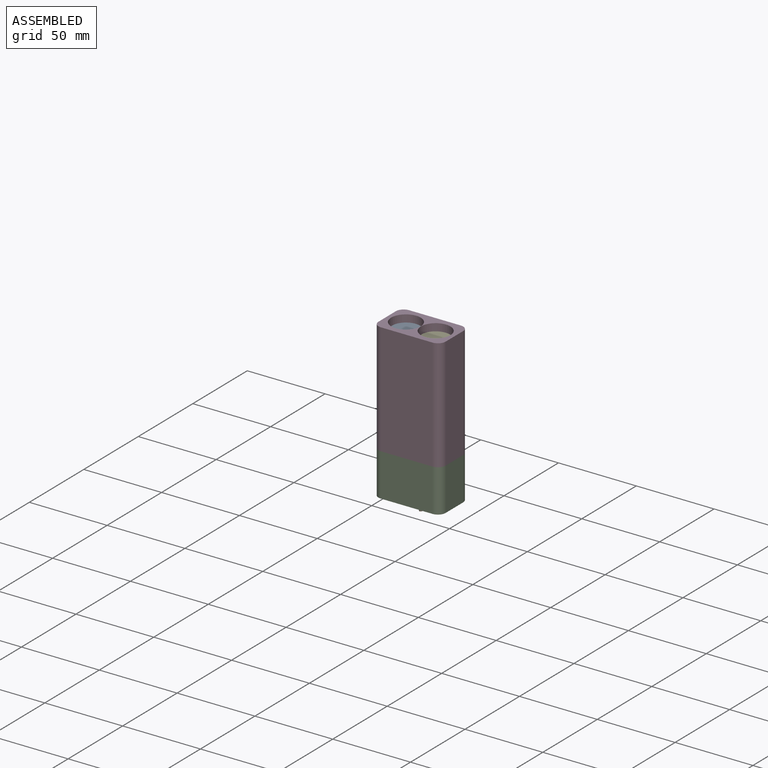
[diagram: assembled view]
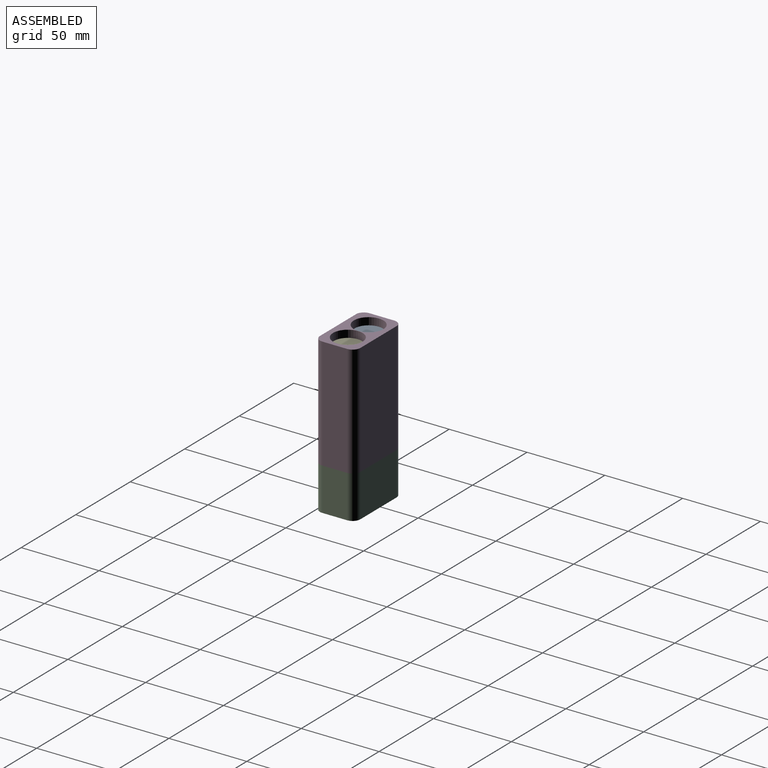
[diagram: assembled view, second angle]
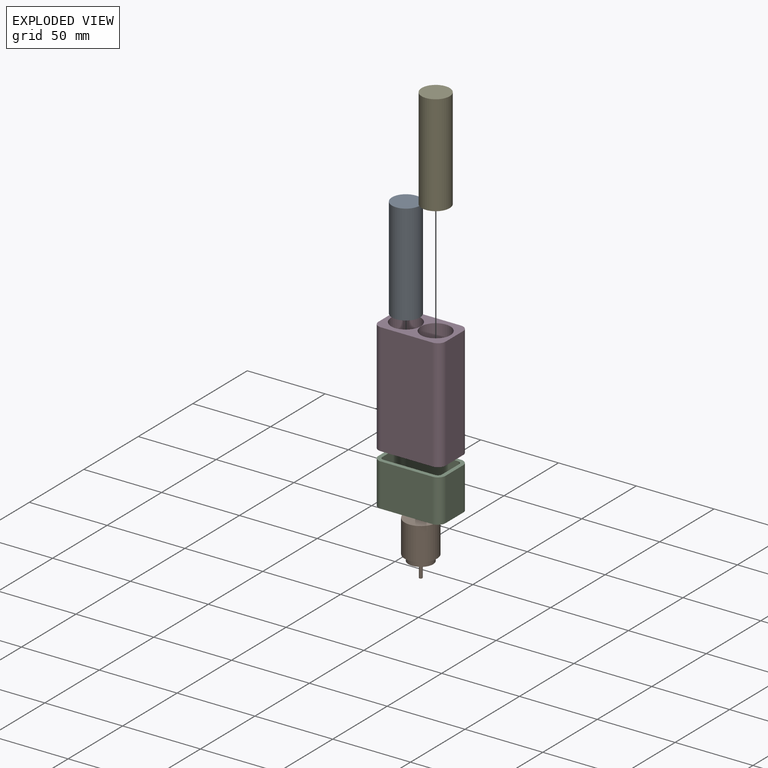
[diagram: exploded view]
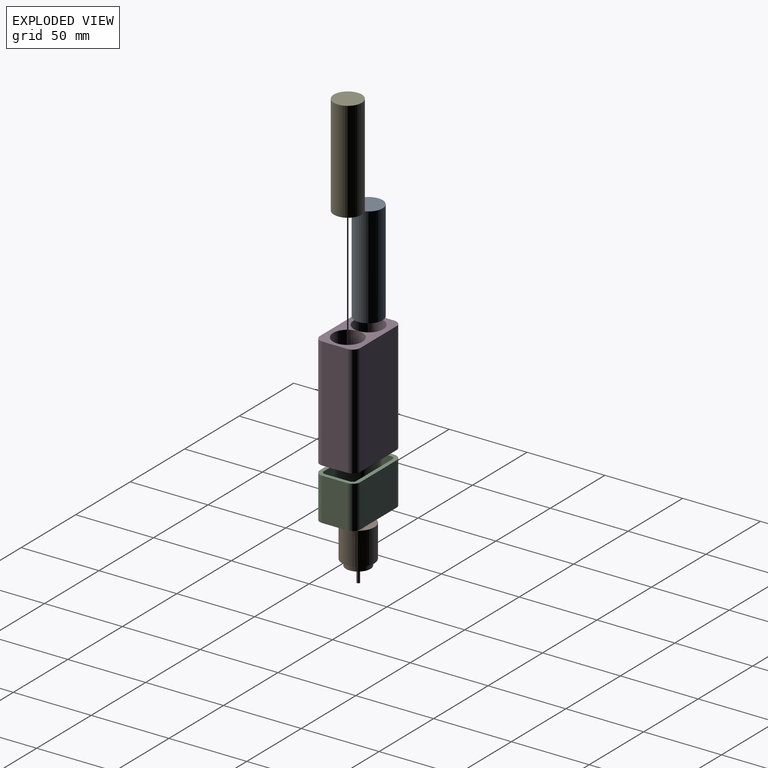
[diagram: exploded view, second angle]
ASSEMBLY  parts=5 mates=4
PART A: 3 faces, bbox 18x18x65 mm
  f0: cylinder r=9mm len=65mm, axis (0,0,-1), area 3675.7mm2, adj f1,f2
  f1: plane 18x18mm, normal (0,0,1), area 254.5mm2, adj f0
  f2: plane 18x18mm, normal (0,0,-1), area 254.5mm2, adj f0
PART B: 13 faces, bbox 20.8x20.8x34.9 mm
  f0: cone r=857.17mm half-angle=59deg, axis (0,0,1), area 3.7mm2, adj f1
  f1: cylinder r=1mm len=12mm, axis (0,0,-1), area 75.4mm2, adj f0,f5
  f2: plane 2x2mm, normal (0,0,1), area 3.1mm2, adj f10
  f3: plane 20.8x20.8mm, normal (0,0,-1), area 339.8mm2, adj f4
  f4: cylinder r=10.4mm len=21mm, axis (0,0,-1), area 1372.2mm2, adj f3,f7
  f5: plane 15.8x15.8mm, normal (0,0,1), area 161.5mm2, adj f1,f6,f8,f11
  f6: cylinder r=7.9mm len=15.8mm, axis (0,0,-1), area 193.6mm2, adj f5,f7
  f7: plane 20.8x20.8mm, normal (0,0,1), area 143.7mm2, adj f4,f6
  f8: cylinder r=3mm len=6mm, axis (0,0,1), area 28.3mm2, adj f5,f9
  f9: plane 6x6mm, normal (0,0,1), area 25.1mm2, adj f8,f10
  f10: cylinder r=1mm len=8.5mm, axis (0,0,1), area 53.4mm2, adj f2,f9
  f11: cylinder r=1mm len=12mm, axis (0,0,-1), area 75.4mm2, adj f5,f12
  f12: cone r=857.17mm half-angle=59deg, axis (0,0,1), area 3.7mm2, adj f11
PART C: 22 faces, bbox 43.2x26x27.5 mm
  f0: plane 38.2x21mm, normal (0,0,1), area 762.3mm2, adj f11,f12,f13,f14,f15,f16,f17,f18
  f1: plane 43.2x26mm, normal (0,0,-1), area 1067.2mm2, adj f3,f4,f5,f6,f7,f8,f9,f10
  f2: plane 43.2x26mm, normal (0,0,1), area 304.9mm2, adj f3,f4,f5,f6,f7,f8,f9,f10
  f3: plane 33.2x27.5mm, normal (0,-1,0), area 913mm2, adj f1,f2,f4,f10
  f4: cylinder r=5mm len=27.5mm, axis (0,0,1), area 216mm2, adj f1,f2,f3,f5
  f5: plane 27.5x16mm, normal (-1,0,0), area 440mm2, adj f1,f2,f4,f6
  f6: cylinder r=5mm len=27.5mm, axis (0,0,1), area 216mm2, adj f1,f2,f5,f7
  f7: plane 33.2x27.5mm, normal (0,1,0), area 913mm2, adj f1,f2,f6,f8
  f8: cylinder r=5mm len=27.5mm, axis (0,0,1), area 216mm2, adj f1,f2,f7,f9
  f9: plane 27.5x16mm, normal (1,0,0), area 440mm2, adj f1,f2,f8,f10
  f10: cylinder r=5mm len=27.5mm, axis (0,0,1), area 216mm2, adj f1,f2,f3,f9
  f11: plane 33.2x25mm, normal (0,1,0), area 830mm2, adj f0,f2,f12,f18
  f12: cylinder r=2.5mm len=25mm, axis (0,0,1), area 98.2mm2, adj f0,f2,f11,f13
  f13: plane 25x16mm, normal (1,0,0), area 400mm2, adj f0,f2,f12,f14
  f14: cylinder r=2.5mm len=25mm, axis (0,0,1), area 98.2mm2, adj f0,f2,f13,f15
  f15: plane 33.2x25mm, normal (0,-1,0), area 830mm2, adj f0,f2,f14,f16
  f16: cylinder r=2.5mm len=25mm, axis (0,0,1), area 98.2mm2, adj f0,f2,f15,f17
  f17: plane 25x16mm, normal (-1,0,0), area 400mm2, adj f0,f2,f16,f18
  f18: cylinder r=2.5mm len=25mm, axis (0,0,1), area 98.2mm2, adj f0,f2,f11,f17
  f19: cylinder r=1mm len=2.5mm, axis (0,0,1), area 15.7mm2, adj f0,f1
  f20: cylinder r=3mm len=6mm, axis (0,0,1), area 47.1mm2, adj f0,f1
  f21: cylinder r=1mm len=2.5mm, axis (0,0,1), area 15.7mm2, adj f0,f1
PART D: 16 faces, bbox 43.2x26x72 mm
  f0: plane 19x19mm, normal (0,0,1), area 274.4mm2, adj f12,f15
  f1: plane 43.2x26mm, normal (0,0,1), area 534.7mm2, adj f2,f3,f4,f5,f6,f7,f8,f9
  f2: plane 72x33.2mm, normal (0,-1,0), area 2390.4mm2, adj f1,f3,f9,f10
  f3: cylinder r=5mm len=72mm, axis (0,0,-1), area 565.5mm2, adj f1,f2,f4,f10
  f4: plane 72x16mm, normal (1,0,0), area 1152mm2, adj f1,f3,f5,f10
  f5: cylinder r=5mm len=72mm, axis (0,0,-1), area 565.5mm2, adj f1,f4,f6,f10
  f6: plane 72x33.2mm, normal (0,1,0), area 2390.4mm2, adj f1,f5,f7,f10
  f7: cylinder r=5mm len=72mm, axis (0,0,-1), area 565.5mm2, adj f1,f6,f8,f10
  f8: plane 72x16mm, normal (-1,0,0), area 1152mm2, adj f1,f7,f9,f10
  f9: cylinder r=5mm len=72mm, axis (0,0,-1), area 565.5mm2, adj f1,f2,f8,f10
  f10: plane 43.2x26mm, normal (0,0,-1), area 1083.6mm2, adj f2,f3,f4,f5,f6,f7,f8,f9
  f11: plane 19x19mm, normal (0,0,1), area 274.4mm2, adj f13,f14
  f12: cylinder r=1.7mm len=3.4mm, axis (0,0,1), area 26.7mm2, adj f0,f10
  f13: cylinder r=1.7mm len=3.4mm, axis (0,0,1), area 26.7mm2, adj f10,f11
  f14: cylinder r=9.5mm len=69.5mm, axis (0,0,-1), area 4148.5mm2, adj f1,f11
  f15: cylinder r=9.5mm len=69.5mm, axis (0,0,-1), area 4148.5mm2, adj f0,f1
PART E: same geometry as A
PLACE A rot(axis=(1,0,0),180deg) t=(4.19,11.24,104.13)mm
PLACE B rot(axis=(1,0,0),180deg) t=(67.51,11.24,36.53)mm
PLACE C t=(13.74,11.24,36.63)mm
PLACE D t=(13.74,11.24,36.63)mm fixed
PLACE E rot(axis=(1,0,0),180deg) t=(23.29,11.24,104.13)mm
MATE fastened A.f0 <-> D.f13  axis (0,0,-1) through (4.19,11.24,39.13)mm
MATE fastened E.f0 <-> D.f12  axis (0,0,-1) through (23.29,11.24,39.13)mm
MATE fastened C.f8 <-> D.f5  axis (0,0,1) through (30.34,19.24,36.63)mm
MATE fastened B.f4 <-> C.f20  axis (0,0,-1) through (13.74,11.24,11.63)mm
